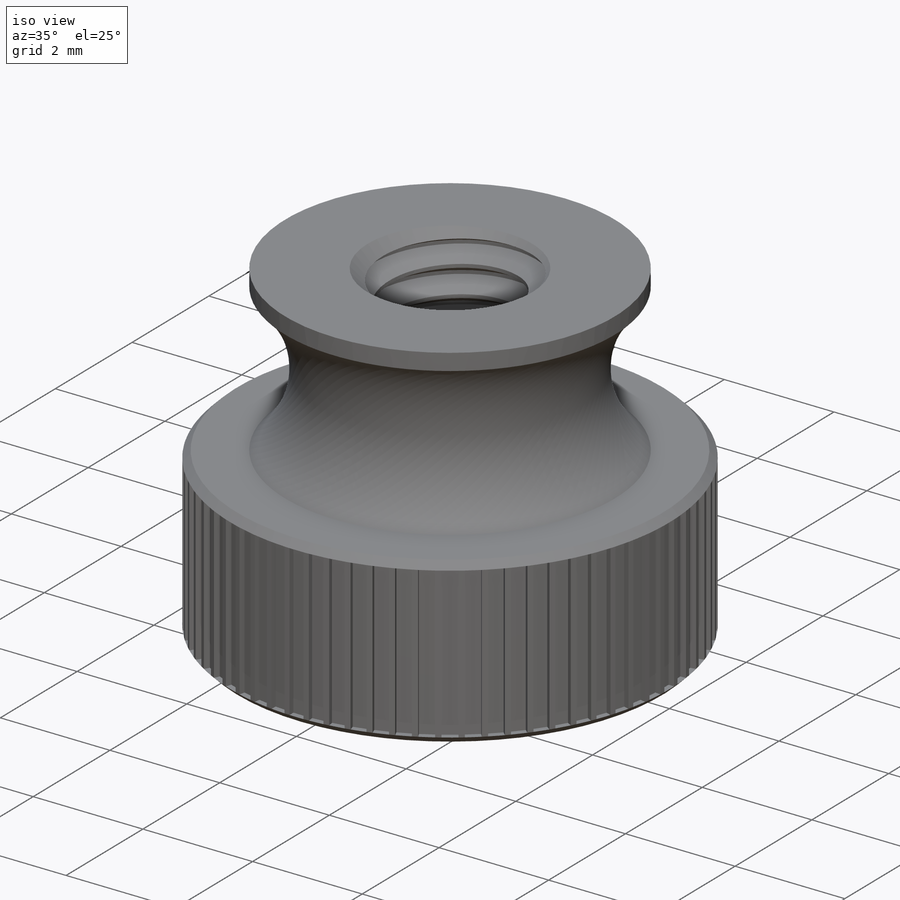
[diagram: iso view]
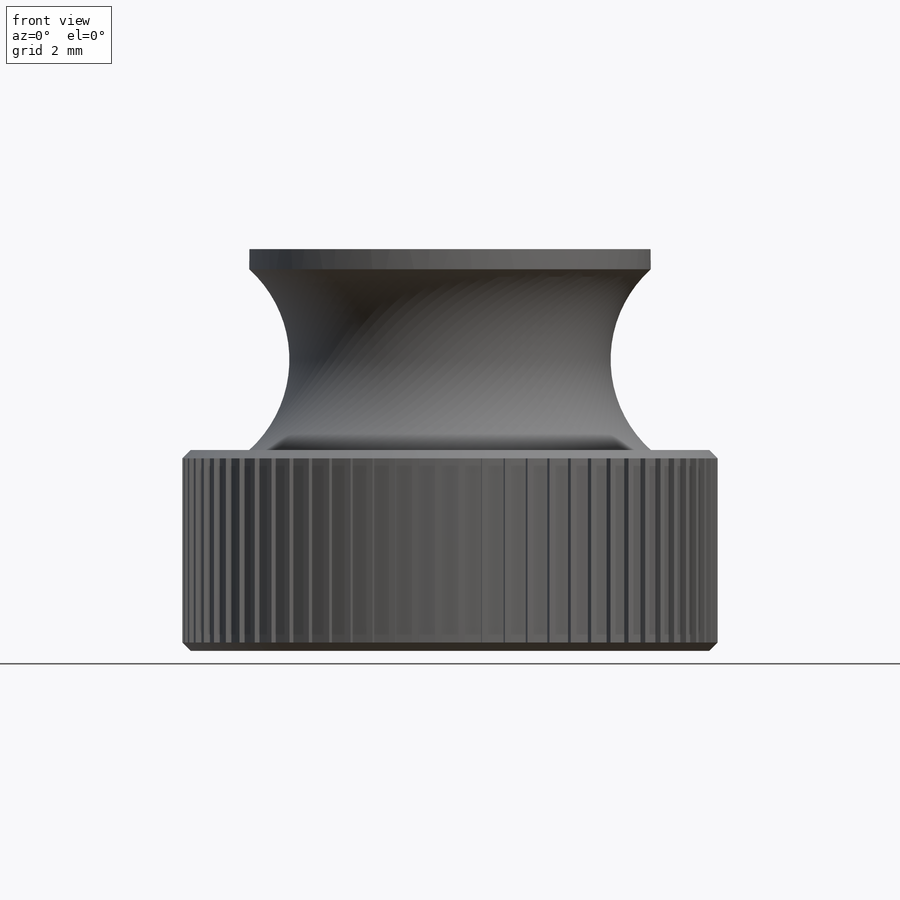
[diagram: front view]
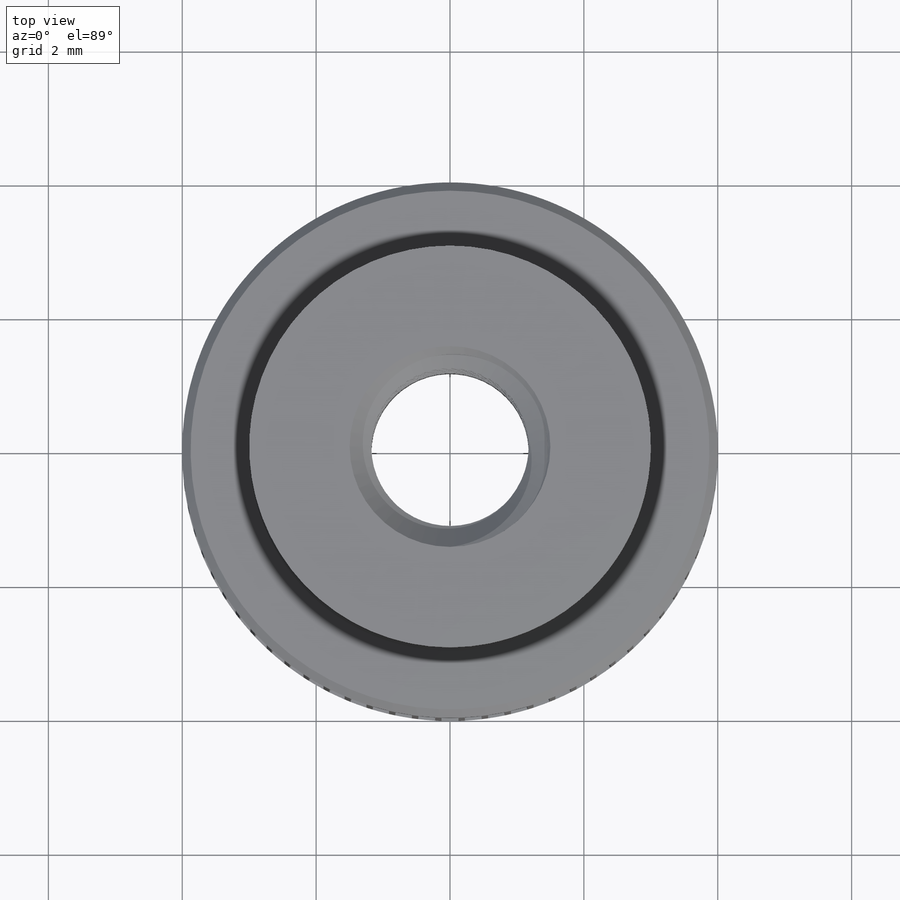
[diagram: top view]
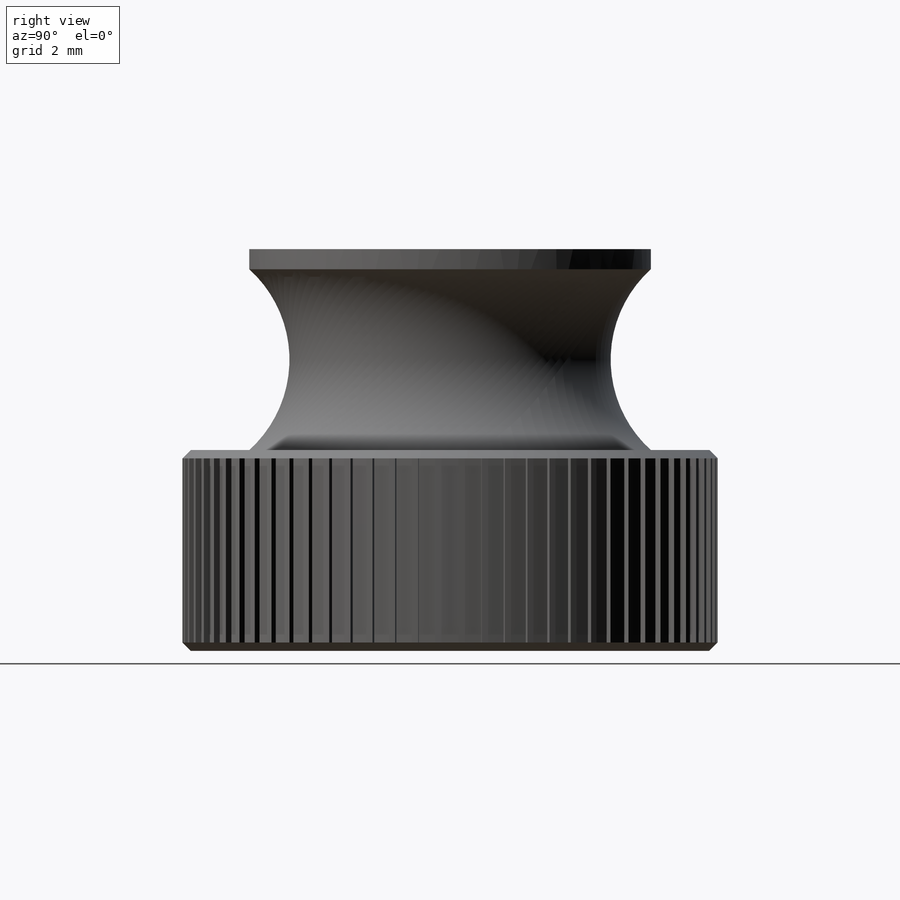
[diagram: right view]
SOLIDWORKS PART (.sldprt)
format: sldprt  version: not decoded by parser v0  size: 1,007,616 bytes
history: native  units: mm
features: sketch x13, cut_extrude x6, plane x2, material x1, revolve x1, helix x1, sweep x1, chamfer x1, pattern_circular x1 (+11 scaffold rows collapsed)
feature tree (38):
  scaffold x11  (default folders/planes/origin — collapsed)
  material  "AISI 304"
  sketch  "Sketch1"  dims[c1.A=28.575mm c1.table slot=17.4625mm c1.B=11.1125mm c1.D4=5.08mm c1.C=19.05mm c2.A=19.05mm c2.C=12.7mm c2.D=6.35mm c2.B=7.9375mm c2.diameter=25.4mm c2.Height=9.525mm c2.D1=22.225mm c2.D2=1.5875mm c3.C=6.0mm c3.B=6.0mm c3.D=3.0mm c3.A=8.0mm c3.D1=0.3mm c3.D2=0.6mm]
  revolve  "Revolve1"  Angle=360deg
  sketch  "Sketch3"  dims[OD=3.0mm]
  cut_extrude  "Cut-Extrude1"  [1 undecoded]
  sketch  "Sketch4"  dims[D1=0.0mm]
  helix  "Helix/Spiral1"  Pitch=9mm pitch=0.5mm
  sketch  "Sketch21"  dims[D1=2.5mm]
  sketch  "Sketch5"  dims[c1.D1=0.0625mm c1.D2=0.25mm c1.D3=~1.452756mm c2.D3=60.0deg]
  sweep  "Sweep1"
  sketch  "Sketch13"  dims[D1=0.0mm]
  cut_extrude  "Cut-Extrude2"  [1 undecoded]
  sketch  "Sketch14"
  cut_extrude  "Cut-Extrude3"  [1 undecoded]
  sketch  "Sketch15"
  cut_extrude  "Cut-Extrude4"  [1 undecoded]
  sketch  "Sketch16"
  cut_extrude  "Cut-Extrude5"  [1 undecoded]
  chamfer  "Chamfer1"  Distance=0.125mm Angle=45deg
  sketch  "Sketch11"  dims[D1=3.0mm]
  sketch  "Sketch12"  dims[D1=3.0mm]
  plane  "Plane1"  Offset=12.7mm
  sketch  "Sketch17"  dims[c1.D1=~8.639008mm c2.D1=0.0deg c2.D2=0.254mm]
  cut_extrude  "Cut-Extrude6"  Depth=0.1mm
  pattern_circular  "CirPattern1"  Count=72 Angle=360deg
  sketch  "Sketch18"
  plane  "Plane3"
decode coverage: 14 of 24 modeling features carry decoded parameters
note: ~ marks probable driven/reference dimensions
note: 5 parameter values undecoded
summary: no parameter record found for 5 features
note: suppression state not decoded; provenance and decode notes live in map.json
